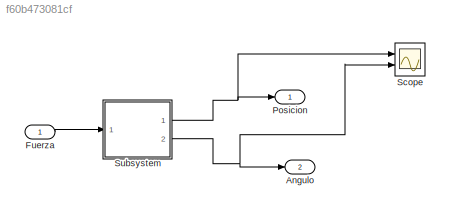
MODEL slx_f60b473081cf
KIND model
CONFIG AbsTol = auto
CONFIG EnableMultiTasking = off
CONFIG FixedStep = auto
CONFIG MaxStep = 0.01
CONFIG MinStep = auto
CONFIG RelTol = 1e-3
CONFIG SampleTimeConstraint = Unconstrained
CONFIG Solver = ode15s
CONFIG SolverName = ode15s
CONFIG StartTime = 0.0
CONFIG StopTime = 10.0
BLOCK [Outport] Angulo
  Port = 2
BLOCK [Inport] Fuerza
BLOCK [Outport] Posicion
BLOCK [Scope] Scope
  Floating = off
  NumInputPorts = 2
  Ports = [2]
  ScopeSpecificationString = Simulink.scopes.TimeScopeBlockCfg('CurrentConfiguration', extmgr.ConfigurationSet(extmgr.Configuration('Core','General UI',true),extmgr.Configuration('Core','Source UI',true),extmgr.Configuration('Sources','WiredSimulink',true),extmgr.Configuration('Visuals','Time Domain',true,'SerializedDisplays',{struct('MinYLimReal','-0.3927','MaxYLimReal','3.53429','YLabelReal','','MinYLimMag','0.00000','MaxYL...<+1376ch>
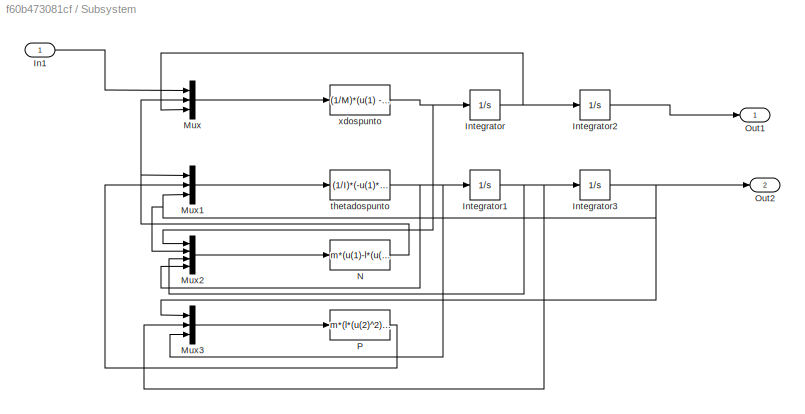
BLOCK [SubSystem] Subsystem
  Ports = [1, 2]
  RequestExecContextInheritance = off
BLOCK [Inport] Subsystem/In1
BLOCK [Integrator] Subsystem/Integrator
  ContinuousStateAttributes = 'xpunto'
  Ports = [1, 1]
BLOCK [Integrator] Subsystem/Integrator1
  ContinuousStateAttributes = 'thetapunto'
  Ports = [1, 1]
BLOCK [Integrator] Subsystem/Integrator2
  ContinuousStateAttributes = 'x'
  Ports = [1, 1]
BLOCK [Integrator] Subsystem/Integrator3
  ContinuousStateAttributes = 'theta'
  InitialCondition = pi
  Ports = [1, 1]
BLOCK [Mux] Subsystem/Mux
  DisplayOption = bar
  Inputs = 3
  Ports = [3, 1]
BLOCK [Mux] Subsystem/Mux1
  DisplayOption = bar
  Inputs = 3
  Ports = [3, 1]
BLOCK [Mux] Subsystem/Mux2
  DisplayOption = bar
  Ports = [4, 1]
BLOCK [Mux] Subsystem/Mux3
  DisplayOption = bar
  Inputs = 3
  Ports = [3, 1]
BLOCK [Fcn] Subsystem/N
  Expr = m*(u(1)-l*(u(3)^2)*sin(u(2))+l*u(4)*cos(u(2)))
BLOCK [Outport] Subsystem/Out1
BLOCK [Outport] Subsystem/Out2
  Port = 2
BLOCK [Fcn] Subsystem/P
  Expr = m*(l*(u(2)^2)*cos(u(1)) + l*u(3)*sin(u(1)) + g)
BLOCK [Fcn] Subsystem/thetadospunto
  Expr = (1/I)*(-u(1)*l*cos(u(3))-u(2)*l*sin(u(3)))
BLOCK [Fcn] Subsystem/xdospunto
  Expr = (1/M)*(u(1) - u(2) - b*u(3))
LINE Fuerza:1 -> Subsystem:1
LINE Subsystem/In1:1 -> Subsystem/Mux:1
NET Subsystem/Integrator1:1 -> Subsystem/Integrator3:1, Subsystem/Mux2:3, Subsystem/Mux3:2
LINE Subsystem/Integrator2:1 -> Subsystem/Out1:1
NET Subsystem/Integrator3:1 -> Subsystem/Mux1:3, Subsystem/Mux2:2, Subsystem/Mux3:1, Subsystem/Out2:1
NET Subsystem/Integrator:1 -> Subsystem/Integrator2:1, Subsystem/Mux:3
LINE Subsystem/Mux1:1 -> Subsystem/thetadospunto:1
LINE Subsystem/Mux2:1 -> Subsystem/N:1
LINE Subsystem/Mux3:1 -> Subsystem/P:1
LINE Subsystem/Mux:1 -> Subsystem/xdospunto:1
NET Subsystem/N:1 -> Subsystem/Mux1:1, Subsystem/Mux:2
LINE Subsystem/P:1 -> Subsystem/Mux1:2
NET Subsystem/thetadospunto:1 -> Subsystem/Integrator1:1, Subsystem/Mux2:4, Subsystem/Mux3:3
NET Subsystem/xdospunto:1 -> Subsystem/Integrator:1, Subsystem/Mux2:1
NET Subsystem:1 -> Posicion:1, Scope:1
NET Subsystem:2 -> Angulo:1, Scope:2
note: NET lines group one-source signal fan-out (src -> all destinations, sorted); 1:1 wires keep LINE
